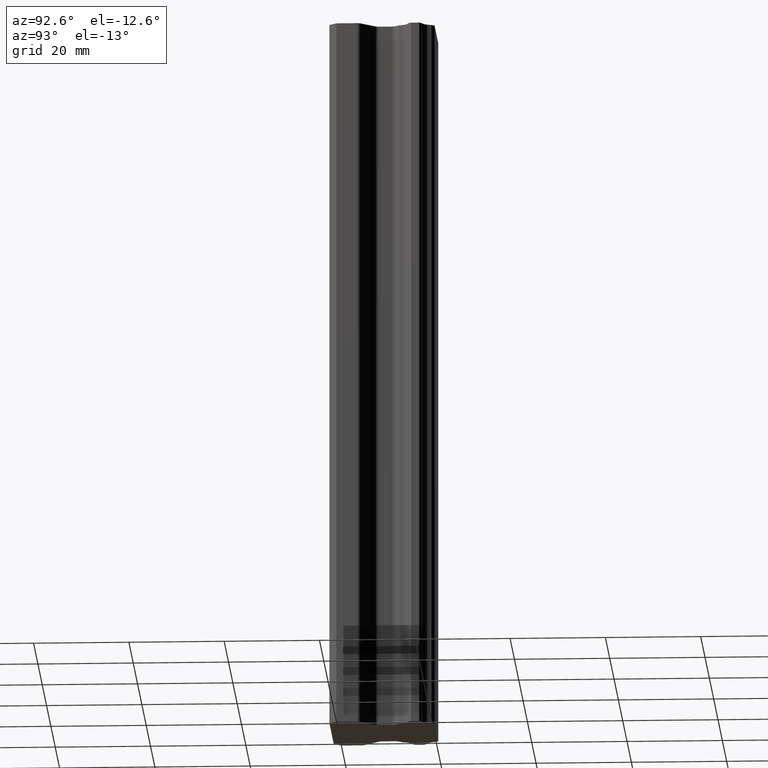
[diagram: clean part render]
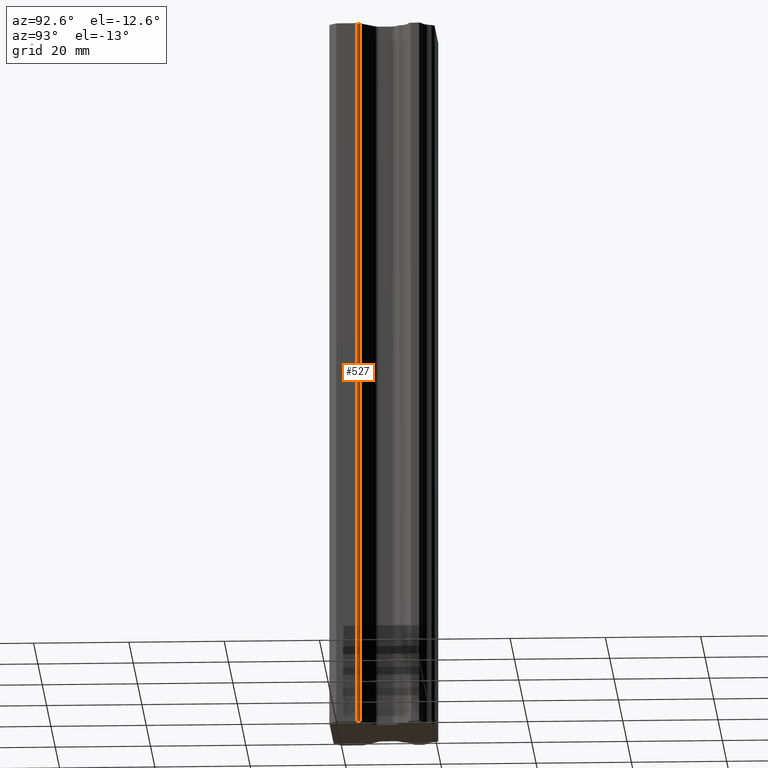
[diagram: same view with one face highlighted and labeled with its STEP entity id]
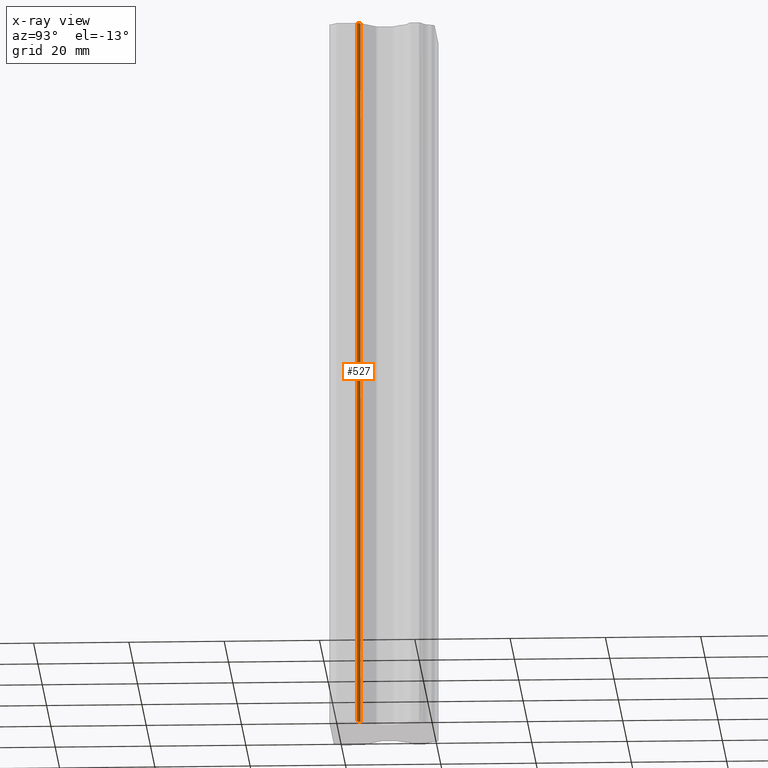
[diagram: x-ray of the same camera — body ghosted, the highlighted face saturated]
A machine part, auxiliary view. The second image highlights one B-rep face of the part: STEP entity #527.
The next image is the same camera in x-ray: the body ghosted, the highlighted face saturated — about 0% of this face is hidden behind the body in this view.
In plain terms, the highlighted cylindrical surface (edge-blend (fillet) strip) has radius 1 mm, axis along (0, 0, 1).
Its self-contained STEP definition (entity closure, byte-faithful):
#527 = ADVANCED_FACE ( 'NONE', ( #1593 ), #1592, .T. ) ;
#569 = EDGE_CURVE ( 'NONE', #570, #648, #1579, .T. ) ;
#570 = VERTEX_POINT ( 'NONE', #1621 ) ;
#571 = ORIENTED_EDGE ( 'NONE', *, *, #572, .T. ) ;
#572 = EDGE_CURVE ( 'NONE', #570, #645, #1619, .T. ) ;
#641 = EDGE_LOOP ( 'NONE', ( #642, #646, #649, #571 ) ) ;
#642 = ORIENTED_EDGE ( 'NONE', *, *, #643, .F. ) ;
#643 = EDGE_CURVE ( 'NONE', #644, #645, #1677, .T. ) ;
#644 = VERTEX_POINT ( 'NONE', #1716 ) ;
#645 = VERTEX_POINT ( 'NONE', #1715 ) ;
#646 = ORIENTED_EDGE ( 'NONE', *, *, #647, .T. ) ;
#647 = EDGE_CURVE ( 'NONE', #644, #648, #1708, .T. ) ;
#648 = VERTEX_POINT ( 'NONE', #1703 ) ;
#649 = ORIENTED_EDGE ( 'NONE', *, *, #569, .F. ) ;
#1574 = DIRECTION ( 'NONE',  ( 1.000000000000000000, 0.0000000000000000000, 0.0000000000000000000 ) ) ;
#1575 = DIRECTION ( 'NONE',  ( 0.0000000000000000000, 0.0000000000000000000, 1.000000000000000000 ) ) ;
#1576 = DIRECTION ( 'NONE',  ( 0.0000000000000000000, 0.0000000000000000000, -1.000000000000000000 ) ) ;
#1577 = VECTOR ( 'NONE', #1576, 1000.000000000000000 ) ;
#1578 = CARTESIAN_POINT ( 'NONE',  ( 11.20710678116500100, -15.46703593437500100, -75.00000000000000000 ) ) ;
#1579 = LINE ( 'NONE', #1578, #1577 ) ;
#1589 = CARTESIAN_POINT ( 'NONE',  ( 10.50000000000000000, -16.17414271559000100, -75.00000000000000000 ) ) ;
#1590 = AXIS2_PLACEMENT_3D ( 'NONE', #1589, #1575, #1574 ) ;
#1592 = CYLINDRICAL_SURFACE ( 'NONE', #1590, 0.9999999999999991100 ) ;
#1593 = FACE_OUTER_BOUND ( 'NONE', #641, .T. ) ;
#1615 = DIRECTION ( 'NONE',  ( 1.000000000000000000, 0.0000000000000000000, 0.0000000000000000000 ) ) ;
#1616 = DIRECTION ( 'NONE',  ( 0.0000000000000000000, 0.0000000000000000000, -1.000000000000000000 ) ) ;
#1617 = CARTESIAN_POINT ( 'NONE',  ( 10.50000000000000000, -16.17414271559000100, 75.00000000000000000 ) ) ;
#1618 = AXIS2_PLACEMENT_3D ( 'NONE', #1617, #1616, #1615 ) ;
#1619 = CIRCLE ( 'NONE', #1618, 0.9999999999999991100 ) ;
#1621 = CARTESIAN_POINT ( 'NONE',  ( 11.20710678117576400, -15.46703593439076300, 75.00000000000000000 ) ) ;
#1677 = LINE ( 'NONE', #1719, #1718 ) ;
#1703 = CARTESIAN_POINT ( 'NONE',  ( 11.20710678117576400, -15.46703593439076300, -75.00000000000000000 ) ) ;
#1704 = DIRECTION ( 'NONE',  ( 1.000000000000000000, 0.0000000000000000000, 0.0000000000000000000 ) ) ;
#1705 = DIRECTION ( 'NONE',  ( 0.0000000000000000000, 0.0000000000000000000, 1.000000000000000000 ) ) ;
#1706 = CARTESIAN_POINT ( 'NONE',  ( 10.50000000000000000, -16.17414271559000100, -75.00000000000000000 ) ) ;
#1707 = AXIS2_PLACEMENT_3D ( 'NONE', #1706, #1705, #1704 ) ;
#1708 = CIRCLE ( 'NONE', #1707, 0.9999999999999991100 ) ;
#1715 = CARTESIAN_POINT ( 'NONE',  ( 11.50000000000000000, -16.17414271559000100, 75.00000000000000000 ) ) ;
#1716 = CARTESIAN_POINT ( 'NONE',  ( 11.50000000000000000, -16.17414271559000100, -75.00000000000000000 ) ) ;
#1717 = DIRECTION ( 'NONE',  ( 0.0000000000000000000, 0.0000000000000000000, 1.000000000000000000 ) ) ;
#1718 = VECTOR ( 'NONE', #1717, 1000.000000000000000 ) ;
#1719 = CARTESIAN_POINT ( 'NONE',  ( 11.50000000000000000, -16.17414271559000100, -75.00000000000000000 ) ) ;